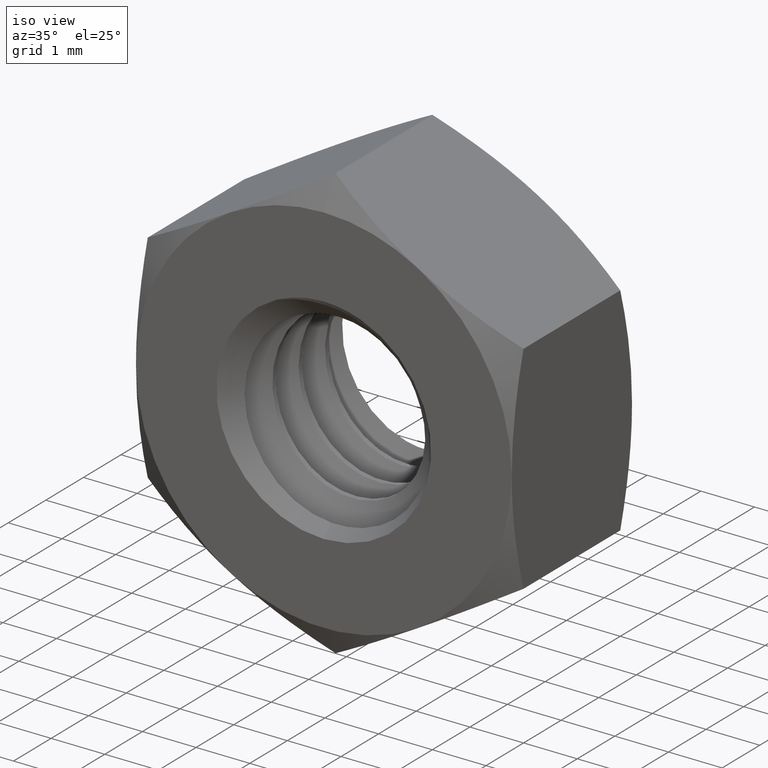
[diagram: clean part render]
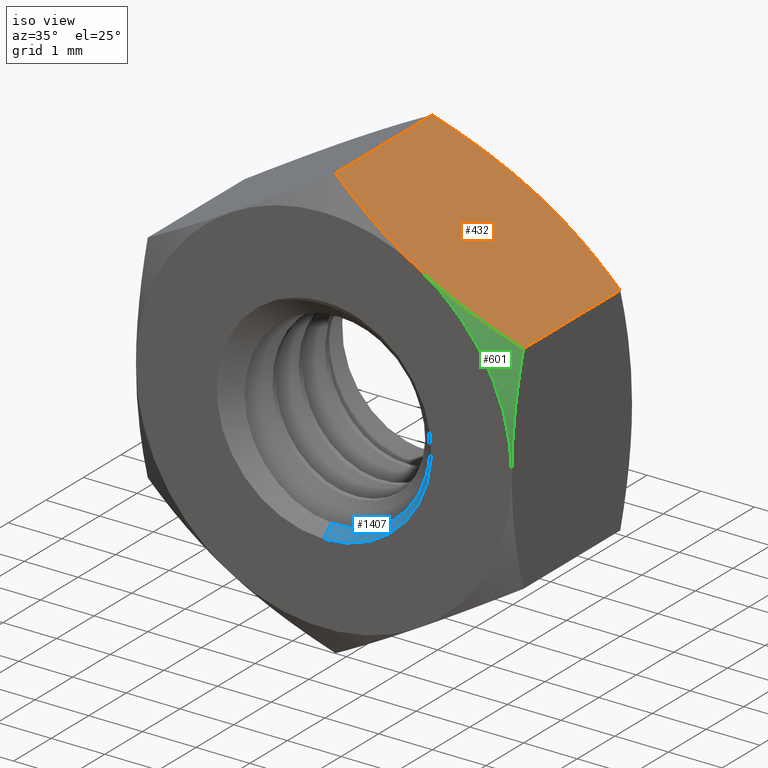
[diagram: same view with three faces highlighted in distinct colors, each labeled with its STEP entity id]
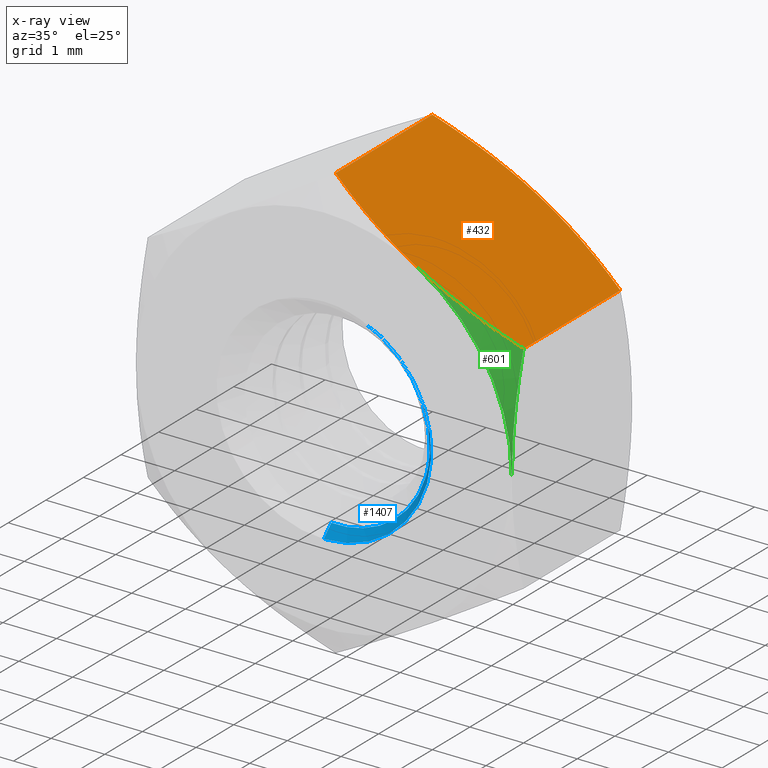
[diagram: x-ray of the same camera — body ghosted, the three highlighted faces saturated]
A machine part, iso view with three faces highlighted in distinct colors.
The next image is the same camera in x-ray (body ghosted, the three faces saturated) — at least one of them is partly hidden behind the body in this view.
Their STEP definitions:

[orange] entity #432 — the highlighted planar face has unit normal (-0.5, 0, -0.866).
#10 = DIRECTION ( 'NONE',  ( -0.8660254037844384900, 0.0000000000000000000, 0.5000000000000002200 ) ) ;
#16 = FACE_OUTER_BOUND ( 'NONE', #740, .T. ) ;
#29 = VERTEX_POINT ( 'NONE', #1082 ) ;
#35 = CARTESIAN_POINT ( 'NONE',  ( -2.689006170421320900E-015, -1.287392608830371500, 4.041451884327359200 ) ) ;
#44 = CARTESIAN_POINT ( 'NONE',  ( -2.706463001568908700E-015, 1.600000000000000100, 4.041451884327359200 ) ) ;
#49 = CARTESIAN_POINT ( 'NONE',  ( 2.926493552096018500, 1.461158938895402300, 2.351840044243016500 ) ) ;
#96 = CARTESIAN_POINT ( 'NONE',  ( 1.153701847711622300, -1.600000000000014300, 3.375361811986483700 ) ) ;
#98 = VECTOR ( 'NONE', #1883, 1000.000000000000000 ) ;
#113 = CARTESIAN_POINT ( 'NONE',  ( 0.5725525826504597200, -1.478243469714902500, 3.710888496608898600 ) ) ;
#138 = CARTESIAN_POINT ( 'NONE',  ( 3.499999999999997800, -1.287392608830366900, 2.020725942163667600 ) ) ;
#203 = CARTESIAN_POINT ( 'NONE',  ( 3.499999999999997800, 1.287392608830366900, 2.020725942163667600 ) ) ;
#265 = LINE ( 'NONE', #44, #98 ) ;
#322 = CARTESIAN_POINT ( 'NONE',  ( -2.689006170421320900E-015, 1.287392608830371500, 4.041451884327359200 ) ) ;
#378 = ORIENTED_EDGE ( 'NONE', *, *, #1194, .T. ) ;
#395 = VERTEX_POINT ( 'NONE', #1232 ) ;
#396 = B_SPLINE_CURVE_WITH_KNOTS ( 'NONE', 3,
 ( #1931, #995, #1184, #896, #1628, #138 ),
 .UNSPECIFIED., .F., .F.,
 ( 4, 2, 4 ),
 ( 0.002044882221487519300, 0.003063384235218488500, 0.004081886248949458100 ),
 .UNSPECIFIED. ) ;
#432 = ADVANCED_FACE ( 'NONE', ( #16 ), #614, .F. ) ;
#456 = EDGE_CURVE ( 'NONE', #29, #1955, #1153, .T. ) ;
#476 = AXIS2_PLACEMENT_3D ( 'NONE', #1864, #932, #10 ) ;
#532 = B_SPLINE_CURVE_WITH_KNOTS ( 'NONE', 3,
 ( #1034, #113, #96, #1350 ),
 .UNSPECIFIED., .F., .F.,
 ( 4, 4 ),
 ( 2.380739282168611800E-007, 0.002044882221487519300 ),
 .UNSPECIFIED. ) ;
#538 = ORIENTED_EDGE ( 'NONE', *, *, #992, .F. ) ;
#614 = PLANE ( 'NONE',  #476 ) ;
#654 = CARTESIAN_POINT ( 'NONE',  ( 3.214438021527930000, 1.382579934988255300, 2.185595227304838200 ) ) ;
#660 = CARTESIAN_POINT ( 'NONE',  ( 1.749999999999991300, 1.600000000000000100, 3.031088913245517000 ) ) ;
#665 = CARTESIAN_POINT ( 'NONE',  ( 1.750000000000001600, -1.600000000000000100, 3.031088913245536100 ) ) ;
#674 = CARTESIAN_POINT ( 'NONE',  ( 1.153701847711622300, 1.600000000000014500, 3.375361811986483700 ) ) ;
#679 = DIRECTION ( 'NONE',  ( -0.0000000000000000000, -1.000000000000000000, -0.0000000000000000000 ) ) ;
#693 = B_SPLINE_CURVE_WITH_KNOTS ( 'NONE', 3,
 ( #1125, #1107, #1435, #49, #654, #203 ),
 .UNSPECIFIED., .F., .F.,
 ( 4, 2, 4 ),
 ( 0.002044882221487520200, 0.003063384235218489400, 0.004081886248949458100 ),
 .UNSPECIFIED. ) ;
#727 = VERTEX_POINT ( 'NONE', #773 ) ;
#740 = EDGE_LOOP ( 'NONE', ( #1606, #1338, #378, #538, #1777, #1716 ) ) ;
#772 = EDGE_CURVE ( 'NONE', #29, #942, #265, .T. ) ;
#773 = CARTESIAN_POINT ( 'NONE',  ( 3.499999999999997800, 1.287392608830366900, 2.020725942163667600 ) ) ;
#786 = EDGE_CURVE ( 'NONE', #1955, #727, #693, .T. ) ;
#825 = CARTESIAN_POINT ( 'NONE',  ( 3.499999999999997800, 1.600000000000000100, 2.020725942163667600 ) ) ;
#896 = CARTESIAN_POINT ( 'NONE',  ( 2.926493552096017600, -1.461158938895402300, 2.351840044243017000 ) ) ;
#932 = DIRECTION ( 'NONE',  ( -0.5000000000000003300, 0.0000000000000000000, -0.8660254037844386000 ) ) ;
#942 = VERTEX_POINT ( 'NONE', #35 ) ;
#992 = EDGE_CURVE ( 'NONE', #727, #395, #1963, .T. ) ;
#995 = CARTESIAN_POINT ( 'NONE',  ( 2.047034997319562500, -1.600000000000014300, 2.859595677584323400 ) ) ;
#1034 = CARTESIAN_POINT ( 'NONE',  ( -2.689006170421320900E-015, -1.287392608830371500, 4.041451884327359200 ) ) ;
#1055 = VECTOR ( 'NONE', #679, 1000.000000000000000 ) ;
#1073 = EDGE_CURVE ( 'NONE', #942, #1092, #532, .T. ) ;
#1082 = CARTESIAN_POINT ( 'NONE',  ( -2.689006170421320900E-015, 1.287392608830371500, 4.041451884327359200 ) ) ;
#1092 = VERTEX_POINT ( 'NONE', #665 ) ;
#1107 = CARTESIAN_POINT ( 'NONE',  ( 2.047034997319563400, 1.600000000000014300, 2.859595677584323000 ) ) ;
#1125 = CARTESIAN_POINT ( 'NONE',  ( 1.749999999999991300, 1.600000000000000100, 3.031088913245517000 ) ) ;
#1153 = B_SPLINE_CURVE_WITH_KNOTS ( 'NONE', 3,
 ( #322, #1924, #674, #660 ),
 .UNSPECIFIED., .F., .F.,
 ( 4, 4 ),
 ( 2.380739282168611800E-007, 0.002044882221487520200 ),
 .UNSPECIFIED. ) ;
#1184 = CARTESIAN_POINT ( 'NONE',  ( 2.343682934607756300, -1.570065989602876600, 2.688325911136437300 ) ) ;
#1194 = EDGE_CURVE ( 'NONE', #1092, #395, #396, .T. ) ;
#1232 = CARTESIAN_POINT ( 'NONE',  ( 3.499999999999997800, -1.287392608830366900, 2.020725942163667600 ) ) ;
#1338 = ORIENTED_EDGE ( 'NONE', *, *, #1073, .T. ) ;
#1350 = CARTESIAN_POINT ( 'NONE',  ( 1.750000000000001600, -1.600000000000000100, 3.031088913245536100 ) ) ;
#1435 = CARTESIAN_POINT ( 'NONE',  ( 2.343682934607757200, 1.570065989602876600, 2.688325911136436800 ) ) ;
#1606 = ORIENTED_EDGE ( 'NONE', *, *, #772, .T. ) ;
#1623 = CARTESIAN_POINT ( 'NONE',  ( 1.749999999999991300, 1.600000000000000100, 3.031088913245517000 ) ) ;
#1628 = CARTESIAN_POINT ( 'NONE',  ( 3.214438021527930000, -1.382579934988255300, 2.185595227304838200 ) ) ;
#1716 = ORIENTED_EDGE ( 'NONE', *, *, #456, .F. ) ;
#1777 = ORIENTED_EDGE ( 'NONE', *, *, #786, .F. ) ;
#1864 = CARTESIAN_POINT ( 'NONE',  ( -2.706463001568908700E-015, 1.600000000000000100, 4.041451884327359200 ) ) ;
#1883 = DIRECTION ( 'NONE',  ( -0.0000000000000000000, -1.000000000000000000, -0.0000000000000000000 ) ) ;
#1924 = CARTESIAN_POINT ( 'NONE',  ( 0.5725525826504600500, 1.478243469714902700, 3.710888496608898600 ) ) ;
#1931 = CARTESIAN_POINT ( 'NONE',  ( 1.750000000000001600, -1.600000000000000100, 3.031088913245536100 ) ) ;
#1955 = VERTEX_POINT ( 'NONE', #1623 ) ;
#1963 = LINE ( 'NONE', #825, #1055 ) ;

[blue] entity #1407 — the highlighted conical surface has half-angle 45 deg.
#19 = VERTEX_POINT ( 'NONE', #1735 ) ;
#157 = CARTESIAN_POINT ( 'NONE',  ( 1.762171996019109300, -1.486115103350378300, -0.6814345904909149300 ) ) ;
#162 = ORIENTED_EDGE ( 'NONE', *, *, #1730, .T. ) ;
#165 = CARTESIAN_POINT ( 'NONE',  ( 1.923875890384484600, -1.511375892679774200, -0.03852936082774155400 ) ) ;
#172 = CARTESIAN_POINT ( 'NONE',  ( 2.702824631663522100E-011, -1.401882938683599100, -1.801882938683598400 ) ) ;
#197 = CARTESIAN_POINT ( 'NONE',  ( 0.0000000000000000000, -1.600000000000000100, -2.000000000000000000 ) ) ;
#200 = DIRECTION ( 'NONE',  ( 0.0000000000000000000, 0.0000000000000000000, 1.000000000000000000 ) ) ;
#297 = ORIENTED_EDGE ( 'NONE', *, *, #1594, .F. ) ;
#308 = CARTESIAN_POINT ( 'NONE',  ( 1.408569341429479300, -1.567110777453623000, 1.391005191545977300 ) ) ;
#314 = CARTESIAN_POINT ( 'NONE',  ( 1.318377194814434900, -1.458167330964024400, -1.314140348204302600 ) ) ;
#329 = DIRECTION ( 'NONE',  ( 0.0000000000000000000, -0.7071067811865463500, -0.7071067811865487900 ) ) ;
#454 = CONICAL_SURFACE ( 'NONE', #733, 2.000000000000000000, 0.7853981633974500600 ) ;
#469 = CARTESIAN_POINT ( 'NONE',  ( 0.1104682635419877200, -1.405809932624737700, -1.805809932622995900 ) ) ;
#599 = CARTESIAN_POINT ( 'NONE',  ( 1.847081879561766100, -1.536669204482387500, 0.6233043337955712600 ) ) ;
#605 = CARTESIAN_POINT ( 'NONE',  ( 1.146960443873393600, -1.449501643726270900, -1.455141066377848600 ) ) ;
#613 = CARTESIAN_POINT ( 'NONE',  ( 0.8625202847289518100, -1.436239354623394900, -1.624821009958207900 ) ) ;
#640 = LINE ( 'NONE', #197, #1539 ) ;
#733 = AXIS2_PLACEMENT_3D ( 'NONE', #787, #1733, #1574 ) ;
#757 = CARTESIAN_POINT ( 'NONE',  ( 1.714892357579102400, -1.482052313348427400, -0.7833207498789975800 ) ) ;
#787 = CARTESIAN_POINT ( 'NONE',  ( 0.0000000000000000000, -1.600000000000000100, 0.0000000000000000000 ) ) ;
#908 = CARTESIAN_POINT ( 'NONE',  ( 0.4423327987917686800, -1.418513484288763900, -1.767370562619032800 ) ) ;
#914 = CARTESIAN_POINT ( 'NONE',  ( 1.837432933166562200, -1.494336507862107800, -0.4738397226058785300 ) ) ;
#930 = CARTESIAN_POINT ( 'NONE',  ( 0.2230256412782290200, -1.409997786016417900, -1.799615866421493800 ) ) ;
#1087 = CARTESIAN_POINT ( 'NONE',  ( 1.771104783052898100, -1.544306144267500300, 0.8324663366396032300 ) ) ;
#1164 = AXIS2_PLACEMENT_3D ( 'NONE', #1702, #1865, #200 ) ;
#1216 = CARTESIAN_POINT ( 'NONE',  ( 0.8823528904324808900, -1.591864940102785100, 1.799711609256806800 ) ) ;
#1231 = CARTESIAN_POINT ( 'NONE',  ( 1.055766114771555100, -1.445116856095909300, -1.517242140217641700 ) ) ;
#1235 = CARTESIAN_POINT ( 'NONE',  ( 1.398432207736778100, -1.462446178781163300, -1.235015960885282400 ) ) ;
#1251 = VERTEX_POINT ( 'NONE', #1477 ) ;
#1315 = ORIENTED_EDGE ( 'NONE', *, *, #1866, .T. ) ;
#1376 = CARTESIAN_POINT ( 'NONE',  ( 0.6746321639310066700, -1.600000000000000100, 1.882782898634297600 ) ) ;
#1390 = CARTESIAN_POINT ( 'NONE',  ( 1.549936478687325800, -1.559151673496884400, 1.218793732899311300 ) ) ;
#1396 = CARTESIAN_POINT ( 'NONE',  ( 0.7594435802410226500, -1.431705543044377200, -1.670520642723713100 ) ) ;
#1403 = CARTESIAN_POINT ( 'NONE',  ( 0.5496146859870793000, -1.422856557945328900, -1.741544802957268400 ) ) ;
#1407 = ADVANCED_FACE ( 'NONE', ( #1938 ), #454, .F. ) ;
#1433 = EDGE_LOOP ( 'NONE', ( #162, #1315, #297 ) ) ;
#1477 = CARTESIAN_POINT ( 'NONE',  ( 0.6746321639310066700, -1.600000000000000100, 1.882782898634297600 ) ) ;
#1538 = CARTESIAN_POINT ( 'NONE',  ( 1.072872982827828300, -1.583560777150754300, 1.683120655543672600 ) ) ;
#1539 = VECTOR ( 'NONE', #329, 1000.000000000000000 ) ;
#1545 = CARTESIAN_POINT ( 'NONE',  ( 1.604074996025557100, -1.474326236607118100, -0.9758937101208565700 ) ) ;
#1574 = DIRECTION ( 'NONE',  ( 0.0000000000000000000, 0.0000000000000000000, -1.000000000000000000 ) ) ;
#1594 = EDGE_CURVE ( 'NONE', #1251, #19, #1724, .T. ) ;
#1683 = CARTESIAN_POINT ( 'NONE',  ( 1.923998697510888900, -1.519974876652982400, 0.1845662311972625900 ) ) ;
#1689 = CARTESIAN_POINT ( 'NONE',  ( 2.702824631663522100E-011, -1.401882938683599100, -1.801882938683598400 ) ) ;
#1697 = VERTEX_POINT ( 'NONE', #172 ) ;
#1702 = CARTESIAN_POINT ( 'NONE',  ( 0.0000000000000000000, -1.600000000000000100, 0.0000000000000000000 ) ) ;
#1724 = CIRCLE ( 'NONE', #1164, 2.000000000000000000 ) ;
#1730 = EDGE_CURVE ( 'NONE', #1251, #1697, #1804, .T. ) ;
#1733 = DIRECTION ( 'NONE',  ( -0.0000000000000000000, -1.000000000000000000, -0.0000000000000000000 ) ) ;
#1735 = CARTESIAN_POINT ( 'NONE',  ( 0.0000000000000000000, -1.600000000000000100, -2.000000000000000000 ) ) ;
#1804 = B_SPLINE_CURVE_WITH_KNOTS ( 'NONE', 3,
 ( #1376, #1216, #1538, #308, #1390, #1087, #599, #1683, #165, #1848, #914, #157, #757, #1545, #1839, #1235, #314, #605, #1231, #613, #1396, #1403, #908, #930, #469, #1689 ),
 .UNSPECIFIED., .F., .F.,
 ( 4, 2, 2, 2, 2, 2, 2, 2, 2, 2, 2, 2, 4 ),
 ( 0.0000000000000000000, 0.0006640648055312648600, 0.001328129611062529700, 0.001992194416593794300, 0.002656259222125059000, 0.002988291624890691400, 0.003320324027656323800, 0.003652356430421956200, 0.003984388833187588500, 0.004316421235953221300, 0.004648453638718854200, 0.004980486041484486100, 0.005312518444250118000 ),
 .UNSPECIFIED. ) ;
#1839 = CARTESIAN_POINT ( 'NONE',  ( 1.540841313483421800, -1.470556449402948800, -1.066283626192418000 ) ) ;
#1848 = CARTESIAN_POINT ( 'NONE',  ( 1.865998445567503400, -1.498532798060440400, -0.3671959612844869500 ) ) ;
#1865 = DIRECTION ( 'NONE',  ( 0.0000000000000000000, 1.000000000000000000, 0.0000000000000000000 ) ) ;
#1866 = EDGE_CURVE ( 'NONE', #1697, #19, #640, .T. ) ;
#1938 = FACE_OUTER_BOUND ( 'NONE', #1433, .T. ) ;

[green] entity #601 — the highlighted conical surface has half-angle 60 deg.
#138 = CARTESIAN_POINT ( 'NONE',  ( 3.499999999999997800, -1.287392608830366900, 2.020725942163667600 ) ) ;
#166 = CARTESIAN_POINT ( 'NONE',  ( 3.499999999999998200, -1.460261472206188000, 1.362879585871371400 ) ) ;
#188 = CARTESIAN_POINT ( 'NONE',  ( 3.499999999999997800, -1.287392608830366900, 2.020725942163667600 ) ) ;
#335 = EDGE_CURVE ( 'NONE', #395, #670, #1167, .T. ) ;
#343 = CARTESIAN_POINT ( 'NONE',  ( 0.0000000000000000000, -1.600000000000000100, 0.0000000000000000000 ) ) ;
#384 = FACE_OUTER_BOUND ( 'NONE', #445, .T. ) ;
#395 = VERTEX_POINT ( 'NONE', #1232 ) ;
#396 = B_SPLINE_CURVE_WITH_KNOTS ( 'NONE', 3,
 ( #1931, #995, #1184, #896, #1628, #138 ),
 .UNSPECIFIED., .F., .F.,
 ( 4, 2, 4 ),
 ( 0.002044882221487519300, 0.003063384235218488500, 0.004081886248949458100 ),
 .UNSPECIFIED. ) ;
#445 = EDGE_LOOP ( 'NONE', ( #630, #1373, #1040 ) ) ;
#554 = EDGE_CURVE ( 'NONE', #1092, #670, #931, .T. ) ;
#601 = ADVANCED_FACE ( 'NONE', ( #384 ), #1732, .T. ) ;
#630 = ORIENTED_EDGE ( 'NONE', *, *, #554, .T. ) ;
#636 = CARTESIAN_POINT ( 'NONE',  ( 3.499999999999997300, -1.600000000000003000, 0.3423287572276435000 ) ) ;
#665 = CARTESIAN_POINT ( 'NONE',  ( 1.750000000000001600, -1.600000000000000100, 3.031088913245536100 ) ) ;
#670 = VERTEX_POINT ( 'NONE', #1693 ) ;
#896 = CARTESIAN_POINT ( 'NONE',  ( 2.926493552096017600, -1.461158938895402300, 2.351840044243017000 ) ) ;
#931 = CIRCLE ( 'NONE', #1291, 3.500000000000001300 ) ;
#995 = CARTESIAN_POINT ( 'NONE',  ( 2.047034997319562500, -1.600000000000014300, 2.859595677584323400 ) ) ;
#1040 = ORIENTED_EDGE ( 'NONE', *, *, #1194, .F. ) ;
#1092 = VERTEX_POINT ( 'NONE', #665 ) ;
#1167 = B_SPLINE_CURVE_WITH_KNOTS ( 'NONE', 3,
 ( #188, #1411, #166, #1259, #636, #1417 ),
 .UNSPECIFIED., .F., .F.,
 ( 4, 2, 4 ),
 ( 0.01093525921502721400, 0.01195847309592475800, 0.01298168697682230500 ),
 .UNSPECIFIED. ) ;
#1184 = CARTESIAN_POINT ( 'NONE',  ( 2.343682934607756300, -1.570065989602876600, 2.688325911136437300 ) ) ;
#1187 = AXIS2_PLACEMENT_3D ( 'NONE', #343, #1285, #1578 ) ;
#1194 = EDGE_CURVE ( 'NONE', #1092, #395, #396, .T. ) ;
#1232 = CARTESIAN_POINT ( 'NONE',  ( 3.499999999999997800, -1.287392608830366900, 2.020725942163667600 ) ) ;
#1259 = CARTESIAN_POINT ( 'NONE',  ( 3.499999999999997300, -1.569728145325836900, 0.6887644558481808000 ) ) ;
#1285 = DIRECTION ( 'NONE',  ( 0.0000000000000000000, 1.000000000000000000, 0.0000000000000000000 ) ) ;
#1291 = AXIS2_PLACEMENT_3D ( 'NONE', #1436, #1909, #1915 ) ;
#1373 = ORIENTED_EDGE ( 'NONE', *, *, #335, .F. ) ;
#1411 = CARTESIAN_POINT ( 'NONE',  ( 3.499999999999998200, -1.381757144928153600, 1.693837600255594600 ) ) ;
#1417 = CARTESIAN_POINT ( 'NONE',  ( 3.500000000000001300, -1.600000000000000100, -1.502314598737158200E-015 ) ) ;
#1436 = CARTESIAN_POINT ( 'NONE',  ( 0.0000000000000000000, -1.600000000000000100, 0.0000000000000000000 ) ) ;
#1578 = DIRECTION ( 'NONE',  ( 0.0000000000000000000, 0.0000000000000000000, 1.000000000000000000 ) ) ;
#1628 = CARTESIAN_POINT ( 'NONE',  ( 3.214438021527930000, -1.382579934988255300, 2.185595227304838200 ) ) ;
#1693 = CARTESIAN_POINT ( 'NONE',  ( 3.500000000000001300, -1.600000000000000100, -1.502314598737158200E-015 ) ) ;
#1732 = CONICAL_SURFACE ( 'NONE', #1187, 3.500000000000001300, 1.047197551196600100 ) ;
#1909 = DIRECTION ( 'NONE',  ( -0.0000000000000000000, 1.000000000000000000, -0.0000000000000000000 ) ) ;
#1915 = DIRECTION ( 'NONE',  ( 0.0000000000000000000, 0.0000000000000000000, 1.000000000000000000 ) ) ;
#1931 = CARTESIAN_POINT ( 'NONE',  ( 1.750000000000001600, -1.600000000000000100, 3.031088913245536100 ) ) ;